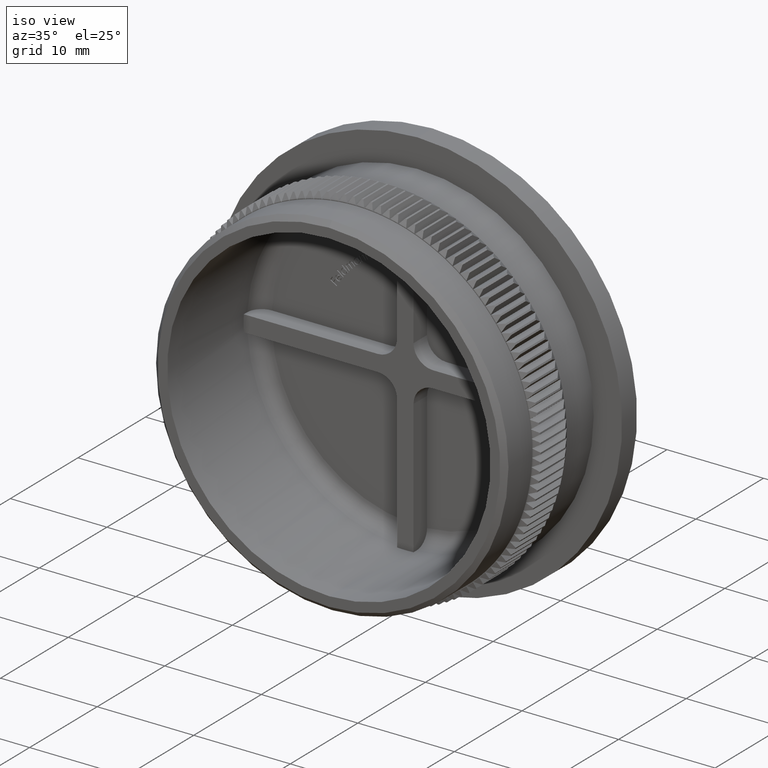
[diagram: clean part render]
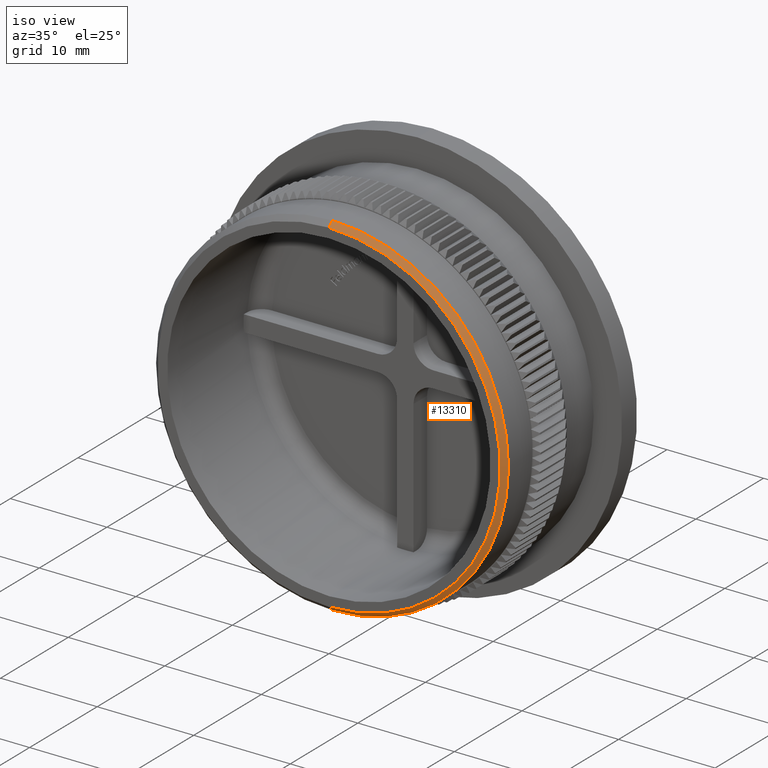
[diagram: same view with one face highlighted and labeled with its STEP entity id]
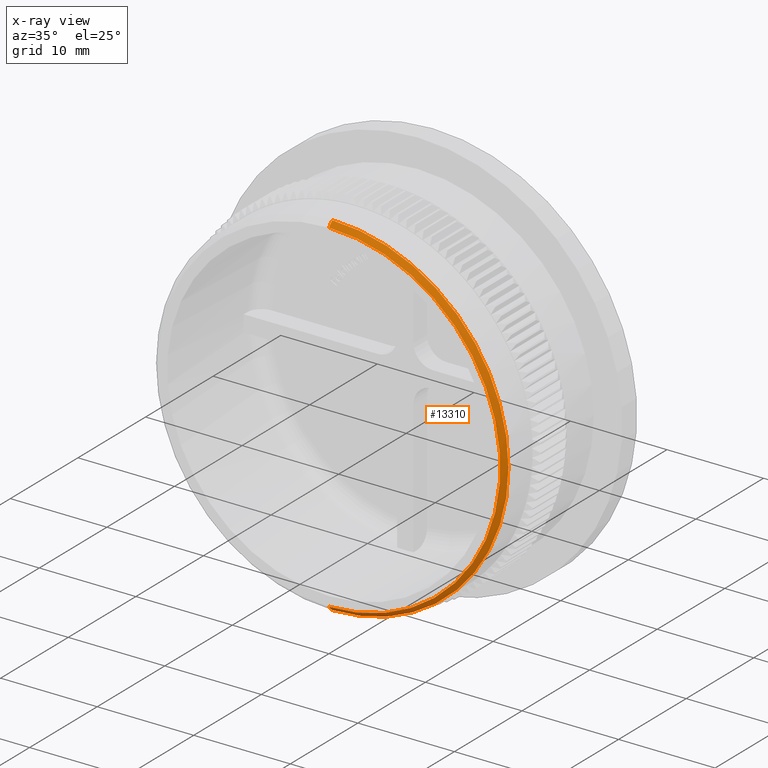
[diagram: x-ray of the same camera — body ghosted, the highlighted face saturated]
A machine part, iso view. The second image highlights one B-rep face of the part: STEP entity #13310.
The next image is the same camera in x-ray: the body ghosted, the highlighted face saturated — about 0% of this face is hidden behind the body in this view.
In plain terms, the highlighted conical surface has half-angle 45 deg.
Its self-contained STEP definition (entity closure, byte-faithful):
#126 = CARTESIAN_POINT ( 'NONE',  ( 0.0000000000000000000, 0.5000000000000004400, -18.25000000000000400 ) ) ;
#1881 = VECTOR ( 'NONE', #10700, 1000.000000000000100 ) ;
#2139 = CARTESIAN_POINT ( 'NONE',  ( 2.234980408443920000E-015, 0.5000000000000004400, 18.25000000000000400 ) ) ;
#3245 = FACE_OUTER_BOUND ( 'NONE', #25328, .T. ) ;
#4152 = CARTESIAN_POINT ( 'NONE',  ( 0.0000000000000000000, 0.0000000000000000000, 17.75000000000000400 ) ) ;
#7711 = DIRECTION ( 'NONE',  ( 0.0000000000000000000, 0.0000000000000000000, -1.000000000000000000 ) ) ;
#8745 = ORIENTED_EDGE ( 'NONE', *, *, #37798, .T. ) ;
#8841 = VERTEX_POINT ( 'NONE', #2139 ) ;
#10700 = DIRECTION ( 'NONE',  ( 8.659560562354932900E-017, 0.7071067811865474600, -0.7071067811865474600 ) ) ;
#10994 = CARTESIAN_POINT ( 'NONE',  ( 0.0000000000000000000, 0.0000000000000000000, 0.0000000000000000000 ) ) ;
#11327 = AXIS2_PLACEMENT_3D ( 'NONE', #10994, #27946, #38554 ) ;
#12789 = CONICAL_SURFACE ( 'NONE', #11327, 17.75000000000000400, 0.7853981633974482800 ) ;
#13310 = ADVANCED_FACE ( 'NONE', ( #3245 ), #12789, .T. ) ;
#13337 = EDGE_CURVE ( 'NONE', #8841, #26234, #34104, .T. ) ;
#14548 = ORIENTED_EDGE ( 'NONE', *, *, #32964, .F. ) ;
#17036 = VERTEX_POINT ( 'NONE', #4152 ) ;
#18135 = DIRECTION ( 'NONE',  ( 0.0000000000000000000, 1.000000000000000000, 0.0000000000000000000 ) ) ;
#18181 = AXIS2_PLACEMENT_3D ( 'NONE', #34661, #18135, #7711 ) ;
#18867 = VERTEX_POINT ( 'NONE', #30772 ) ;
#19181 = CARTESIAN_POINT ( 'NONE',  ( 0.0000000000000000000, 0.0000000000000000000, 0.0000000000000000000 ) ) ;
#22121 = DIRECTION ( 'NONE',  ( 0.0000000000000000000, 0.0000000000000000000, -1.000000000000000000 ) ) ;
#22711 = ORIENTED_EDGE ( 'NONE', *, *, #13337, .F. ) ;
#23922 = CARTESIAN_POINT ( 'NONE',  ( 2.173748068486552000E-015, 0.0000000000000000000, -17.75000000000000400 ) ) ;
#25328 = EDGE_LOOP ( 'NONE', ( #43241, #8745, #22711, #14548 ) ) ;
#25699 = DIRECTION ( 'NONE',  ( -0.0000000000000000000, -1.000000000000000000, -0.0000000000000000000 ) ) ;
#26234 = VERTEX_POINT ( 'NONE', #126 ) ;
#27672 = EDGE_CURVE ( 'NONE', #18867, #17036, #37171, .T. ) ;
#27946 = DIRECTION ( 'NONE',  ( 0.0000000000000000000, 1.000000000000000000, 0.0000000000000000000 ) ) ;
#28995 = LINE ( 'NONE', #23922, #1881 ) ;
#30772 = CARTESIAN_POINT ( 'NONE',  ( 2.204364238465236200E-015, 0.0000000000000000000, -17.75000000000000400 ) ) ;
#31419 = VECTOR ( 'NONE', #35973, 1000.000000000000100 ) ;
#31535 = AXIS2_PLACEMENT_3D ( 'NONE', #19181, #25699, #22121 ) ;
#32964 = EDGE_CURVE ( 'NONE', #17036, #8841, #43701, .T. ) ;
#34104 = CIRCLE ( 'NONE', #18181, 18.25000000000000400 ) ;
#34661 = CARTESIAN_POINT ( 'NONE',  ( 0.0000000000000000000, 0.5000000000000004400, 0.0000000000000000000 ) ) ;
#35973 = DIRECTION ( 'NONE',  ( 0.0000000000000000000, 0.7071067811865474600, 0.7071067811865474600 ) ) ;
#37171 = CIRCLE ( 'NONE', #31535, 17.75000000000000400 ) ;
#37798 = EDGE_CURVE ( 'NONE', #18867, #26234, #28995, .T. ) ;
#38554 = DIRECTION ( 'NONE',  ( 0.0000000000000000000, 0.0000000000000000000, 1.000000000000000000 ) ) ;
#38936 = CARTESIAN_POINT ( 'NONE',  ( 0.0000000000000000000, 0.0000000000000000000, 17.75000000000000400 ) ) ;
#43241 = ORIENTED_EDGE ( 'NONE', *, *, #27672, .F. ) ;
#43701 = LINE ( 'NONE', #38936, #31419 ) ;